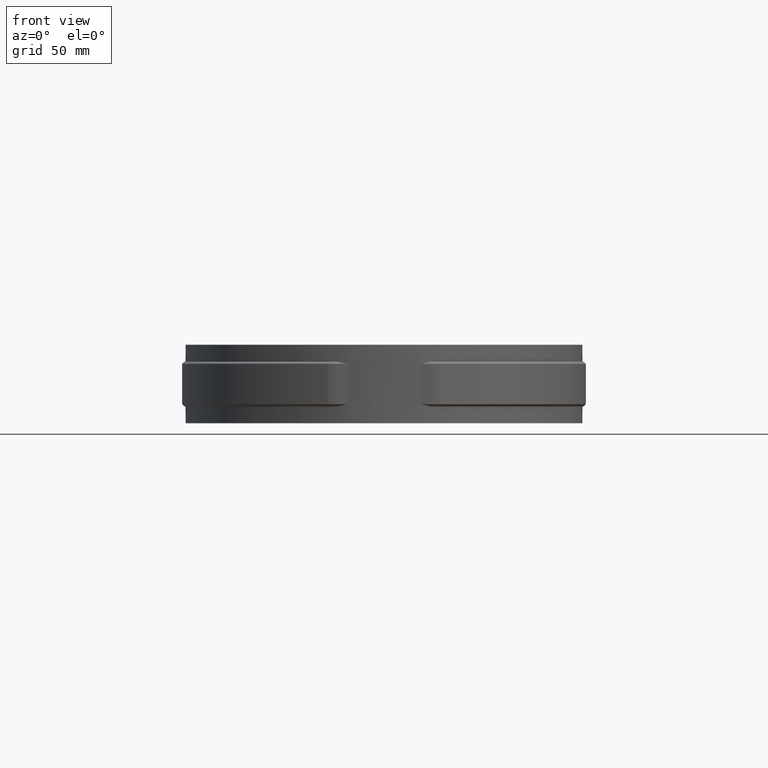
[diagram: clean part render]
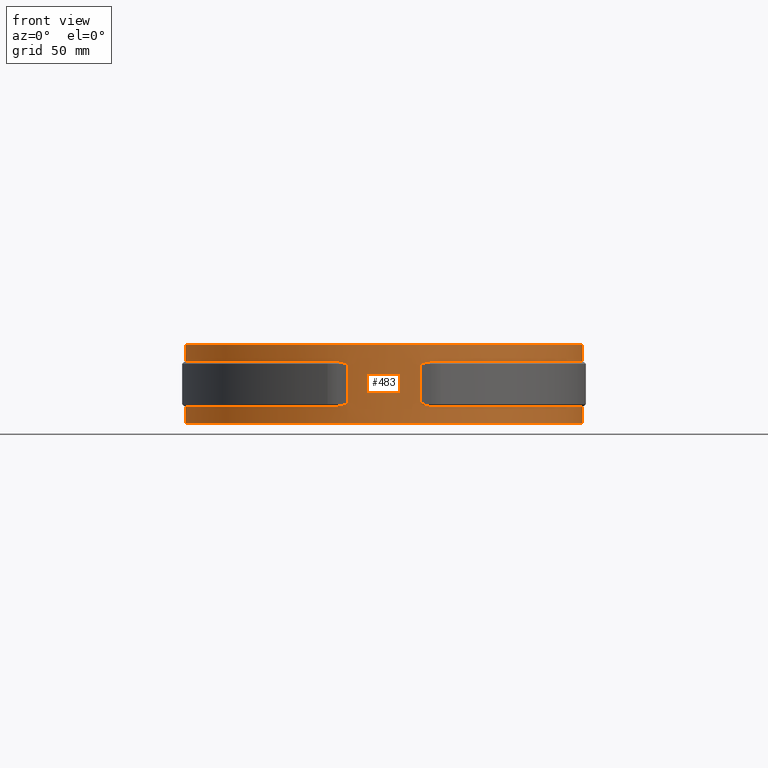
[diagram: same view with one face highlighted and labeled with its STEP entity id]
A machine part, front view. The second image highlights one B-rep face of the part: STEP entity #483.
In plain terms, the highlighted cylindrical surface (partial cylindrical patch) has radius 88.5 mm, axis along (0, 0, 1).
Its self-contained STEP definition (entity closure, byte-faithful):
#483 = ADVANCED_FACE( '', ( #860 ), #861, .T. );
#860 = FACE_OUTER_BOUND( '', #1987, .T. );
#861 = CYLINDRICAL_SURFACE( '', #1988, 88.5000000000000 );
#1987 = EDGE_LOOP( '', ( #4920, #4921, #4922, #4923, #4924, #4925, #4926, #4927, #4928, #4929, #4930, #4931, #4932, #4933, #4934, #4935 ) );
#1988 = AXIS2_PLACEMENT_3D( '', #4936, #4937, #4938 );
#4920 = ORIENTED_EDGE( '', *, *, #5445, .T. );
#4921 = ORIENTED_EDGE( '', *, *, #5453, .T. );
#4922 = ORIENTED_EDGE( '', *, *, #5454, .T. );
#4923 = ORIENTED_EDGE( '', *, *, #5449, .T. );
#4924 = ORIENTED_EDGE( '', *, *, #5428, .T. );
#4925 = ORIENTED_EDGE( '', *, *, #5455, .F. );
#4926 = ORIENTED_EDGE( '', *, *, #5446, .T. );
#4927 = ORIENTED_EDGE( '', *, *, #5417, .F. );
#4928 = ORIENTED_EDGE( '', *, *, #5397, .F. );
#4929 = ORIENTED_EDGE( '', *, *, #5456, .T. );
#4930 = ORIENTED_EDGE( '', *, *, #5414, .T. );
#4931 = ORIENTED_EDGE( '', *, *, #5451, .F. );
#4932 = ORIENTED_EDGE( '', *, *, #5439, .T. );
#4933 = ORIENTED_EDGE( '', *, *, #5452, .F. );
#4934 = ORIENTED_EDGE( '', *, *, #5399, .F. );
#4935 = ORIENTED_EDGE( '', *, *, #5383, .T. );
#4936 = CARTESIAN_POINT( '', ( 0.000000000000000, 0.000000000000000, -33.5000000000000 ) );
#4937 = DIRECTION( '', ( 0.000000000000000, 0.000000000000000, 1.00000000000000 ) );
#4938 = DIRECTION( '', ( 0.000000000000000, 1.00000000000000, 0.000000000000000 ) );
#5383 = EDGE_CURVE( '', #6169, #6167, #6170, .T. );
#5397 = EDGE_CURVE( '', #6190, #6192, #6193, .F. );
#5399 = EDGE_CURVE( '', #6169, #6182, #6195, .F. );
#5414 = EDGE_CURVE( '', #6219, #6220, #6221, .F. );
#5417 = EDGE_CURVE( '', #6192, #6224, #6225, .T. );
#5428 = EDGE_CURVE( '', #6241, #6242, #6243, .F. );
#5439 = EDGE_CURVE( '', #6259, #6260, #6261, .T. );
#5445 = EDGE_CURVE( '', #6167, #6266, #6268, .F. );
#5446 = EDGE_CURVE( '', #6269, #6224, #6270, .F. );
#5449 = EDGE_CURVE( '', #6273, #6241, #6274, .F. );
#5451 = EDGE_CURVE( '', #6259, #6220, #6276, .F. );
#5452 = EDGE_CURVE( '', #6182, #6260, #6277, .F. );
#5453 = EDGE_CURVE( '', #6266, #6278, #6279, .F. );
#5454 = EDGE_CURVE( '', #6278, #6273, #6280, .T. );
#5455 = EDGE_CURVE( '', #6269, #6242, #6281, .F. );
#5456 = EDGE_CURVE( '', #6190, #6219, #6282, .F. );
#6167 = VERTEX_POINT( '', #9400 );
#6169 = VERTEX_POINT( '', #9403 );
#6170 = CIRCLE( '', #9404, 88.5000000000000 );
#6182 = VERTEX_POINT( '', #9426 );
#6190 = VERTEX_POINT( '', #9442 );
#6192 = VERTEX_POINT( '', #9445 );
#6193 = LINE( '', #9446, #9447 );
#6195 = LINE( '', #9450, #9451 );
#6219 = VERTEX_POINT( '', #9481 );
#6220 = VERTEX_POINT( '', #9482 );
#6221 = ELLIPSE( '', #9483, 125.157900270019, 88.5000000000000 );
#6224 = VERTEX_POINT( '', #9488 );
#6225 = CIRCLE( '', #9489, 88.5000000000000 );
#6241 = VERTEX_POINT( '', #9510 );
#6242 = VERTEX_POINT( '', #9511 );
#6243 = ELLIPSE( '', #9512, 125.157900270019, 88.5000000000000 );
#6259 = VERTEX_POINT( '', #9540 );
#6260 = VERTEX_POINT( '', #9541 );
#6261 = ELLIPSE( '', #9542, 125.157900270019, 88.5000000000000 );
#6266 = VERTEX_POINT( '', #9549 );
#6268 = LINE( '', #9552, #9553 );
#6269 = VERTEX_POINT( '', #9554 );
#6270 = LINE( '', #9555, #9556 );
#6273 = VERTEX_POINT( '', #9561 );
#6274 = LINE( '', #9562, #9563 );
#6276 = LINE( '', #9566, #9567 );
#6277 = CIRCLE( '', #9568, 88.5000000000000 );
#6278 = VERTEX_POINT( '', #9569 );
#6279 = CIRCLE( '', #9570, 88.5000000000000 );
#6280 = ELLIPSE( '', #9571, 125.157900270019, 88.5000000000000 );
#6281 = CIRCLE( '', #9572, 88.5000000000000 );
#6282 = CIRCLE( '', #9573, 88.5000000000000 );
#9400 = CARTESIAN_POINT( '', ( 8.40000000000000, 88.1004540283420, -33.5000000000000 ) );
#9403 = CARTESIAN_POINT( '', ( -8.39999999999999, 88.1004540283420, -33.5000000000000 ) );
#9404 = AXIS2_PLACEMENT_3D( '', #10128, #10129, #10130 );
#9426 = CARTESIAN_POINT( '', ( -8.39999999999999, 88.1004540283420, -26.0000000000000 ) );
#9442 = CARTESIAN_POINT( '', ( -8.39999999999999, 88.1004540283420, -6.00000000000000 ) );
#9445 = CARTESIAN_POINT( '', ( -8.39999999999999, 88.1004540283420, 1.50000000000000 ) );
#9446 = CARTESIAN_POINT( '', ( -8.39999999999999, 88.1004540283420, -33.5000000000000 ) );
#9447 = VECTOR( '', #10143, 1000.00000000000 );
#9450 = CARTESIAN_POINT( '', ( -8.39999999999999, 88.1004540283420, -33.5000000000000 ) );
#9451 = VECTOR( '', #10145, 1000.00000000000 );
#9481 = CARTESIAN_POINT( '', ( -20.8865985742054, -86.0000000000000, -6.00000000000000 ) );
#9482 = CARTESIAN_POINT( '', ( -16.2249807395879, -87.0000000000000, -7.00000000000000 ) );
#9483 = AXIS2_PLACEMENT_3D( '', #10176, #10177, #10178 );
#9488 = CARTESIAN_POINT( '', ( 8.40000000000000, 88.1004540283420, 1.50000000000000 ) );
#9489 = AXIS2_PLACEMENT_3D( '', #10181, #10182, #10183 );
#9510 = CARTESIAN_POINT( '', ( 16.2249807395879, -87.0000000000000, -7.00000000000000 ) );
#9511 = CARTESIAN_POINT( '', ( 20.8865985742054, -86.0000000000000, -5.99999999999999 ) );
#9512 = AXIS2_PLACEMENT_3D( '', #10204, #10205, #10206 );
#9540 = CARTESIAN_POINT( '', ( -16.2249807395879, -87.0000000000000, -25.0000000000000 ) );
#9541 = CARTESIAN_POINT( '', ( -20.8865985742054, -86.0000000000000, -26.0000000000000 ) );
#9542 = AXIS2_PLACEMENT_3D( '', #10219, #10220, #10221 );
#9549 = CARTESIAN_POINT( '', ( 8.40000000000000, 88.1004540283420, -26.0000000000000 ) );
#9552 = CARTESIAN_POINT( '', ( 8.40000000000000, 88.1004540283420, -33.5000000000000 ) );
#9553 = VECTOR( '', #10231, 1000.00000000000 );
#9554 = CARTESIAN_POINT( '', ( 8.40000000000000, 88.1004540283420, -6.00000000000000 ) );
#9555 = CARTESIAN_POINT( '', ( 8.40000000000000, 88.1004540283420, -33.5000000000000 ) );
#9556 = VECTOR( '', #10232, 1000.00000000000 );
#9561 = CARTESIAN_POINT( '', ( 16.2249807395879, -87.0000000000000, -25.0000000000000 ) );
#9562 = CARTESIAN_POINT( '', ( 16.2249807395879, -87.0000000000000, -33.5000000000000 ) );
#9563 = VECTOR( '', #10235, 1000.00000000000 );
#9566 = CARTESIAN_POINT( '', ( -16.2249807395879, -87.0000000000000, -33.5000000000000 ) );
#9567 = VECTOR( '', #10237, 1000.00000000000 );
#9568 = AXIS2_PLACEMENT_3D( '', #10238, #10239, #10240 );
#9569 = CARTESIAN_POINT( '', ( 20.8865985742053, -86.0000000000000, -26.0000000000000 ) );
#9570 = AXIS2_PLACEMENT_3D( '', #10241, #10242, #10243 );
#9571 = AXIS2_PLACEMENT_3D( '', #10244, #10245, #10246 );
#9572 = AXIS2_PLACEMENT_3D( '', #10247, #10248, #10249 );
#9573 = AXIS2_PLACEMENT_3D( '', #10250, #10251, #10252 );
#10128 = CARTESIAN_POINT( '', ( 0.000000000000000, 0.000000000000000, -33.5000000000000 ) );
#10129 = DIRECTION( '', ( 0.000000000000000, 0.000000000000000, 1.00000000000000 ) );
#10130 = DIRECTION( '', ( 1.00000000000000, 0.000000000000000, 0.000000000000000 ) );
#10143 = DIRECTION( '', ( 0.000000000000000, 0.000000000000000, -1.00000000000000 ) );
#10145 = DIRECTION( '', ( 0.000000000000000, 0.000000000000000, -1.00000000000000 ) );
#10176 = CARTESIAN_POINT( '', ( 0.000000000000000, 0.000000000000000, 79.9999999999999 ) );
#10177 = DIRECTION( '', ( 3.92523114670943E-017, 0.707106781186547, -0.707106781186548 ) );
#10178 = DIRECTION( '', ( -3.92523114670944E-017, -0.707106781186548, -0.707106781186547 ) );
#10181 = CARTESIAN_POINT( '', ( 0.000000000000000, 0.000000000000000, 1.50000000000000 ) );
#10182 = DIRECTION( '', ( 0.000000000000000, 0.000000000000000, 1.00000000000000 ) );
#10183 = DIRECTION( '', ( 1.00000000000000, 0.000000000000000, 0.000000000000000 ) );
#10204 = CARTESIAN_POINT( '', ( 0.000000000000000, 0.000000000000000, 80.0000000000003 ) );
#10205 = DIRECTION( '', ( -3.92523114670944E-017, 0.707106781186549, -0.707106781186546 ) );
#10206 = DIRECTION( '', ( 3.92523114670942E-017, -0.707106781186546, -0.707106781186549 ) );
#10219 = CARTESIAN_POINT( '', ( 0.000000000000000, 0.000000000000000, -112.000000000000 ) );
#10220 = DIRECTION( '', ( -3.92523114670944E-017, -0.707106781186548, -0.707106781186547 ) );
#10221 = DIRECTION( '', ( 3.92523114670943E-017, 0.707106781186547, -0.707106781186548 ) );
#10231 = DIRECTION( '', ( 0.000000000000000, 0.000000000000000, -1.00000000000000 ) );
#10232 = DIRECTION( '', ( 0.000000000000000, 0.000000000000000, -1.00000000000000 ) );
#10235 = DIRECTION( '', ( 0.000000000000000, 0.000000000000000, -1.00000000000000 ) );
#10237 = DIRECTION( '', ( 0.000000000000000, 0.000000000000000, -1.00000000000000 ) );
#10238 = CARTESIAN_POINT( '', ( 0.000000000000000, 0.000000000000000, -26.0000000000000 ) );
#10239 = DIRECTION( '', ( 0.000000000000000, 0.000000000000000, -1.00000000000000 ) );
#10240 = DIRECTION( '', ( -1.00000000000000, 0.000000000000000, 0.000000000000000 ) );
#10241 = CARTESIAN_POINT( '', ( 0.000000000000000, 0.000000000000000, -26.0000000000000 ) );
#10242 = DIRECTION( '', ( 0.000000000000000, 0.000000000000000, 1.00000000000000 ) );
#10243 = DIRECTION( '', ( 1.00000000000000, 0.000000000000000, 0.000000000000000 ) );
#10244 = CARTESIAN_POINT( '', ( 0.000000000000000, 0.000000000000000, -112.000000000000 ) );
#10245 = DIRECTION( '', ( 3.92523114670944E-017, -0.707106781186548, -0.707106781186547 ) );
#10246 = DIRECTION( '', ( -3.92523114670943E-017, 0.707106781186547, -0.707106781186548 ) );
#10247 = CARTESIAN_POINT( '', ( 0.000000000000000, 0.000000000000000, -6.00000000000000 ) );
#10248 = DIRECTION( '', ( 0.000000000000000, 0.000000000000000, 1.00000000000000 ) );
#10249 = DIRECTION( '', ( 1.00000000000000, 0.000000000000000, 0.000000000000000 ) );
#10250 = CARTESIAN_POINT( '', ( 0.000000000000000, 0.000000000000000, -6.00000000000000 ) );
#10251 = DIRECTION( '', ( 0.000000000000000, 0.000000000000000, -1.00000000000000 ) );
#10252 = DIRECTION( '', ( -1.00000000000000, 0.000000000000000, 0.000000000000000 ) );